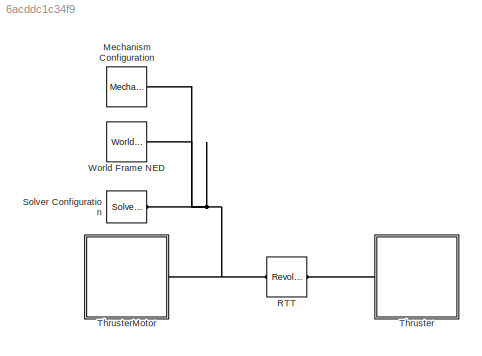
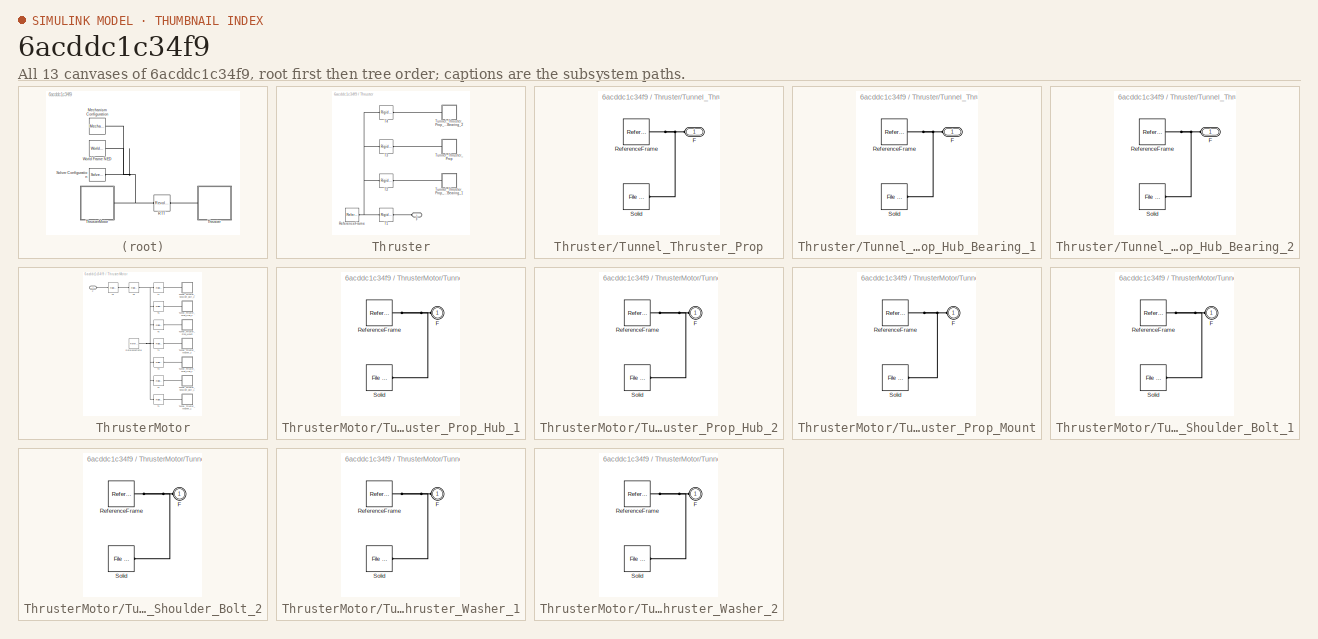
[diagram: thumbnail index - all 13 canvases of the model, root first then tree order]
MODEL slx_6acddc1c34f9
KIND model
CONFIG AbsTol = auto
CONFIG EnableMultiTasking = on
CONFIG FixedStep = auto
CONFIG MaxStep = 0.01
CONFIG MinStep = auto
CONFIG PreLoadFcn = AUV_VehicleParameters;
CONFIG RelTol = 1e-3
CONFIG SampleTimeConstraint = Unconstrained
CONFIG Solver = ode23t
CONFIG SolverName = ode23t
CONFIG StartTime = 0.0
CONFIG StopTime = 10.0
WORKSPACE source: external: MATLAB File  (data not in archive)
BLOCK [Reference] Mechanism Configuration  REF=sm_lib/Utilities/Mechanism
Configuration
  NameLocation = top
  Ports = [0, 0, 0, 0, 0, 0, 1]
  SourceBlock = sm_lib/Utilities/Mechanism\nConfiguration
  SourceProductBaseCode = MS
  SourceType = Mechanism\nConfiguration
BLOCK [Reference] RTT  REF=sm_lib/Joints/Revolute Joint
  Ports = [0, 0, 0, 0, 0, 1, 1]
  SourceBlock = sm_lib/Joints/Revolute Joint
  SourceProductBaseCode = MS
  SourceType = Revolute Joint
BLOCK [Reference] Solver Configuration  REF=nesl_utility/Solver
Configuration
  NameLocation = top
  Ports = [0, 0, 0, 0, 0, 0, 1]
  SourceBlock = nesl_utility/Solver\nConfiguration
  SourceProductBaseCode = MT,SS
  SourceType = Solver\nConfiguration
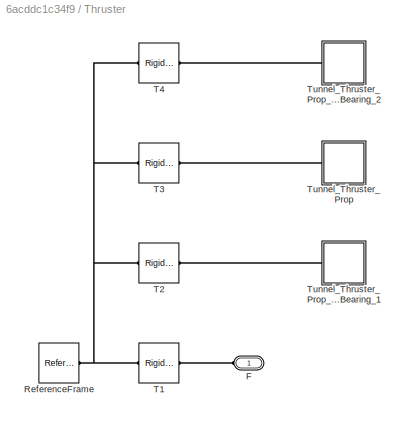
BLOCK [SubSystem] Thruster
  Ports = [0, 0, 0, 0, 0, 1]
  RequestExecContextInheritance = off
BLOCK [PMIOPort] Thruster/F
  Side = Left
BLOCK [Reference] Thruster/ReferenceFrame  REF=sm_lib/Frames and
Transforms/Reference
Frame
  Ports = [0, 0, 0, 0, 0, 0, 1]
  SourceBlock = sm_lib/Frames and\nTransforms/Reference\nFrame
  SourceProductBaseCode = MS
  SourceType = Reference\nFrame
BLOCK [Reference] Thruster/T1  REF=sm_lib/Frames and
Transforms/Rigid
Transform
  Ports = [0, 0, 0, 0, 0, 1, 1]
  SourceBlock = sm_lib/Frames and\nTransforms/Rigid\nTransform
  SourceProductBaseCode = MS
  SourceType = Rigid\nTransform
BLOCK [Reference] Thruster/T2  REF=sm_lib/Frames and
Transforms/Rigid
Transform
  Ports = [0, 0, 0, 0, 0, 1, 1]
  SourceBlock = sm_lib/Frames and\nTransforms/Rigid\nTransform
  SourceProductBaseCode = MS
  SourceType = Rigid\nTransform
BLOCK [Reference] Thruster/T3  REF=sm_lib/Frames and
Transforms/Rigid
Transform
  Ports = [0, 0, 0, 0, 0, 1, 1]
  SourceBlock = sm_lib/Frames and\nTransforms/Rigid\nTransform
  SourceProductBaseCode = MS
  SourceType = Rigid\nTransform
BLOCK [Reference] Thruster/T4  REF=sm_lib/Frames and
Transforms/Rigid
Transform
  Ports = [0, 0, 0, 0, 0, 1, 1]
  SourceBlock = sm_lib/Frames and\nTransforms/Rigid\nTransform
  SourceProductBaseCode = MS
  SourceType = Rigid\nTransform
BLOCK [SubSystem] Thruster/Tunnel_Thruster_Prop
  Ports = [0, 0, 0, 0, 0, 1]
  RequestExecContextInheritance = off
BLOCK [PMIOPort] Thruster/Tunnel_Thruster_Prop/F
  Side = Left
BLOCK [Reference] Thruster/Tunnel_Thruster_Prop/ReferenceFrame  REF=sm_lib/Frames and
Transforms/Reference
Frame
  Ports = [0, 0, 0, 0, 0, 0, 1]
  SourceBlock = sm_lib/Frames and\nTransforms/Reference\nFrame
  SourceProductBaseCode = MS
  SourceType = Reference\nFrame
BLOCK [Reference] Thruster/Tunnel_Thruster_Prop/Solid  REF=sm_lib/Body Elements/File Solid
  Ports = [0, 0, 0, 0, 0, 0, 1]
  SourceBlock = sm_lib/Body Elements/File Solid
  SourceProductBaseCode = MS
  SourceType = File Solid
BLOCK [SubSystem] Thruster/Tunnel_Thruster_Prop_Hub_Bearing_1
  Ports = [0, 0, 0, 0, 0, 1]
  RequestExecContextInheritance = off
BLOCK [PMIOPort] Thruster/Tunnel_Thruster_Prop_Hub_Bearing_1/F
  Side = Left
BLOCK [Reference] Thruster/Tunnel_Thruster_Prop_Hub_Bearing_1/ReferenceFrame  REF=sm_lib/Frames and
Transforms/Reference
Frame
  Ports = [0, 0, 0, 0, 0, 0, 1]
  SourceBlock = sm_lib/Frames and\nTransforms/Reference\nFrame
  SourceProductBaseCode = MS
  SourceType = Reference\nFrame
BLOCK [Reference] Thruster/Tunnel_Thruster_Prop_Hub_Bearing_1/Solid  REF=sm_lib/Body Elements/File Solid
  Ports = [0, 0, 0, 0, 0, 0, 1]
  SourceBlock = sm_lib/Body Elements/File Solid
  SourceProductBaseCode = MS
  SourceType = File Solid
BLOCK [SubSystem] Thruster/Tunnel_Thruster_Prop_Hub_Bearing_2
  Ports = [0, 0, 0, 0, 0, 1]
  RequestExecContextInheritance = off
BLOCK [PMIOPort] Thruster/Tunnel_Thruster_Prop_Hub_Bearing_2/F
  Side = Left
BLOCK [Reference] Thruster/Tunnel_Thruster_Prop_Hub_Bearing_2/ReferenceFrame  REF=sm_lib/Frames and
Transforms/Reference
Frame
  Ports = [0, 0, 0, 0, 0, 0, 1]
  SourceBlock = sm_lib/Frames and\nTransforms/Reference\nFrame
  SourceProductBaseCode = MS
  SourceType = Reference\nFrame
BLOCK [Reference] Thruster/Tunnel_Thruster_Prop_Hub_Bearing_2/Solid  REF=sm_lib/Body Elements/File Solid
  Ports = [0, 0, 0, 0, 0, 0, 1]
  SourceBlock = sm_lib/Body Elements/File Solid
  SourceProductBaseCode = MS
  SourceType = File Solid
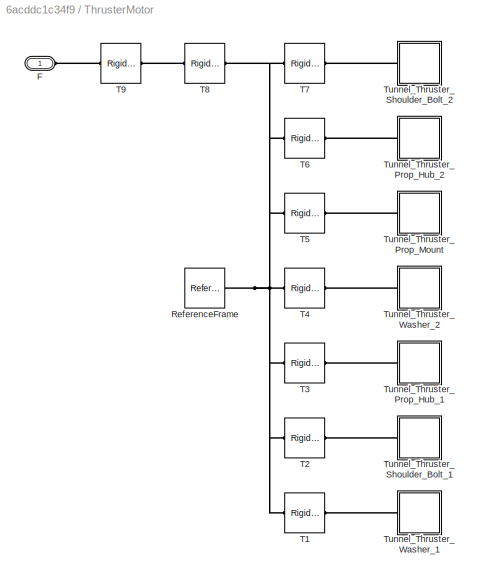
BLOCK [SubSystem] ThrusterMotor
  Ports = [0, 0, 0, 0, 0, 1]
  RequestExecContextInheritance = off
BLOCK [PMIOPort] ThrusterMotor/F
  Side = Left
BLOCK [Reference] ThrusterMotor/ReferenceFrame  REF=sm_lib/Frames and
Transforms/Reference
Frame
  Ports = [0, 0, 0, 0, 0, 0, 1]
  SourceBlock = sm_lib/Frames and\nTransforms/Reference\nFrame
  SourceProductBaseCode = MS
  SourceType = Reference\nFrame
BLOCK [Reference] ThrusterMotor/T1  REF=sm_lib/Frames and
Transforms/Rigid
Transform
  Ports = [0, 0, 0, 0, 0, 1, 1]
  SourceBlock = sm_lib/Frames and\nTransforms/Rigid\nTransform
  SourceProductBaseCode = MS
  SourceType = Rigid\nTransform
BLOCK [Reference] ThrusterMotor/T2  REF=sm_lib/Frames and
Transforms/Rigid
Transform
  Ports = [0, 0, 0, 0, 0, 1, 1]
  SourceBlock = sm_lib/Frames and\nTransforms/Rigid\nTransform
  SourceProductBaseCode = MS
  SourceType = Rigid\nTransform
BLOCK [Reference] ThrusterMotor/T3  REF=sm_lib/Frames and
Transforms/Rigid
Transform
  Ports = [0, 0, 0, 0, 0, 1, 1]
  SourceBlock = sm_lib/Frames and\nTransforms/Rigid\nTransform
  SourceProductBaseCode = MS
  SourceType = Rigid\nTransform
BLOCK [Reference] ThrusterMotor/T4  REF=sm_lib/Frames and
Transforms/Rigid
Transform
  Ports = [0, 0, 0, 0, 0, 1, 1]
  SourceBlock = sm_lib/Frames and\nTransforms/Rigid\nTransform
  SourceProductBaseCode = MS
  SourceType = Rigid\nTransform
BLOCK [Reference] ThrusterMotor/T5  REF=sm_lib/Frames and
Transforms/Rigid
Transform
  Ports = [0, 0, 0, 0, 0, 1, 1]
  SourceBlock = sm_lib/Frames and\nTransforms/Rigid\nTransform
  SourceProductBaseCode = MS
  SourceType = Rigid\nTransform
BLOCK [Reference] ThrusterMotor/T6  REF=sm_lib/Frames and
Transforms/Rigid
Transform
  Ports = [0, 0, 0, 0, 0, 1, 1]
  SourceBlock = sm_lib/Frames and\nTransforms/Rigid\nTransform
  SourceProductBaseCode = MS
  SourceType = Rigid\nTransform
BLOCK [Reference] ThrusterMotor/T7  REF=sm_lib/Frames and
Transforms/Rigid
Transform
  Ports = [0, 0, 0, 0, 0, 1, 1]
  SourceBlock = sm_lib/Frames and\nTransforms/Rigid\nTransform
  SourceProductBaseCode = MS
  SourceType = Rigid\nTransform
BLOCK [Reference] ThrusterMotor/T8  REF=sm_lib/Frames and
Transforms/Rigid
Transform
  Ports = [0, 0, 0, 0, 0, 1, 1]
  SourceBlock = sm_lib/Frames and\nTransforms/Rigid\nTransform
  SourceProductBaseCode = MS
  SourceType = Rigid\nTransform
BLOCK [Reference] ThrusterMotor/T9  REF=sm_lib/Frames and
Transforms/Rigid
Transform
  Ports = [0, 0, 0, 0, 0, 1, 1]
  SourceBlock = sm_lib/Frames and\nTransforms/Rigid\nTransform
  SourceProductBaseCode = MS
  SourceType = Rigid\nTransform
BLOCK [SubSystem] ThrusterMotor/Tunnel_Thruster_Prop_Hub_1
  Ports = [0, 0, 0, 0, 0, 1]
  RequestExecContextInheritance = off
BLOCK [PMIOPort] ThrusterMotor/Tunnel_Thruster_Prop_Hub_1/F
  Side = Left
BLOCK [Reference] ThrusterMotor/Tunnel_Thruster_Prop_Hub_1/ReferenceFrame  REF=sm_lib/Frames and
Transforms/Reference
Frame
  Ports = [0, 0, 0, 0, 0, 0, 1]
  SourceBlock = sm_lib/Frames and\nTransforms/Reference\nFrame
  SourceProductBaseCode = MS
  SourceType = Reference\nFrame
BLOCK [Reference] ThrusterMotor/Tunnel_Thruster_Prop_Hub_1/Solid  REF=sm_lib/Body Elements/File Solid
  Ports = [0, 0, 0, 0, 0, 0, 1]
  SourceBlock = sm_lib/Body Elements/File Solid
  SourceProductBaseCode = MS
  SourceType = File Solid
BLOCK [SubSystem] ThrusterMotor/Tunnel_Thruster_Prop_Hub_2
  Ports = [0, 0, 0, 0, 0, 1]
  RequestExecContextInheritance = off
BLOCK [PMIOPort] ThrusterMotor/Tunnel_Thruster_Prop_Hub_2/F
  Side = Left
BLOCK [Reference] ThrusterMotor/Tunnel_Thruster_Prop_Hub_2/ReferenceFrame  REF=sm_lib/Frames and
Transforms/Reference
Frame
  Ports = [0, 0, 0, 0, 0, 0, 1]
  SourceBlock = sm_lib/Frames and\nTransforms/Reference\nFrame
  SourceProductBaseCode = MS
  SourceType = Reference\nFrame
BLOCK [Reference] ThrusterMotor/Tunnel_Thruster_Prop_Hub_2/Solid  REF=sm_lib/Body Elements/File Solid
  Ports = [0, 0, 0, 0, 0, 0, 1]
  SourceBlock = sm_lib/Body Elements/File Solid
  SourceProductBaseCode = MS
  SourceType = File Solid
BLOCK [SubSystem] ThrusterMotor/Tunnel_Thruster_Prop_Mount
  Ports = [0, 0, 0, 0, 0, 1]
  RequestExecContextInheritance = off
BLOCK [PMIOPort] ThrusterMotor/Tunnel_Thruster_Prop_Mount/F
  Side = Left
BLOCK [Reference] ThrusterMotor/Tunnel_Thruster_Prop_Mount/ReferenceFrame  REF=sm_lib/Frames and
Transforms/Reference
Frame
  Ports = [0, 0, 0, 0, 0, 0, 1]
  SourceBlock = sm_lib/Frames and\nTransforms/Reference\nFrame
  SourceProductBaseCode = MS
  SourceType = Reference\nFrame
BLOCK [Reference] ThrusterMotor/Tunnel_Thruster_Prop_Mount/Solid  REF=sm_lib/Body Elements/File Solid
  Ports = [0, 0, 0, 0, 0, 0, 1]
  SourceBlock = sm_lib/Body Elements/File Solid
  SourceProductBaseCode = MS
  SourceType = File Solid
BLOCK [SubSystem] ThrusterMotor/Tunnel_Thruster_Shoulder_Bolt_1
  Ports = [0, 0, 0, 0, 0, 1]
  RequestExecContextInheritance = off
BLOCK [PMIOPort] ThrusterMotor/Tunnel_Thruster_Shoulder_Bolt_1/F
  Side = Left
BLOCK [Reference] ThrusterMotor/Tunnel_Thruster_Shoulder_Bolt_1/ReferenceFrame  REF=sm_lib/Frames and
Transforms/Reference
Frame
  Ports = [0, 0, 0, 0, 0, 0, 1]
  SourceBlock = sm_lib/Frames and\nTransforms/Reference\nFrame
  SourceProductBaseCode = MS
  SourceType = Reference\nFrame
BLOCK [Reference] ThrusterMotor/Tunnel_Thruster_Shoulder_Bolt_1/Solid  REF=sm_lib/Body Elements/File Solid
  Ports = [0, 0, 0, 0, 0, 0, 1]
  SourceBlock = sm_lib/Body Elements/File Solid
  SourceProductBaseCode = MS
  SourceType = File Solid
BLOCK [SubSystem] ThrusterMotor/Tunnel_Thruster_Shoulder_Bolt_2
  Ports = [0, 0, 0, 0, 0, 1]
  RequestExecContextInheritance = off
BLOCK [PMIOPort] ThrusterMotor/Tunnel_Thruster_Shoulder_Bolt_2/F
  Side = Left
BLOCK [Reference] ThrusterMotor/Tunnel_Thruster_Shoulder_Bolt_2/ReferenceFrame  REF=sm_lib/Frames and
Transforms/Reference
Frame
  Ports = [0, 0, 0, 0, 0, 0, 1]
  SourceBlock = sm_lib/Frames and\nTransforms/Reference\nFrame
  SourceProductBaseCode = MS
  SourceType = Reference\nFrame
BLOCK [Reference] ThrusterMotor/Tunnel_Thruster_Shoulder_Bolt_2/Solid  REF=sm_lib/Body Elements/File Solid
  Ports = [0, 0, 0, 0, 0, 0, 1]
  SourceBlock = sm_lib/Body Elements/File Solid
  SourceProductBaseCode = MS
  SourceType = File Solid
BLOCK [SubSystem] ThrusterMotor/Tunnel_Thruster_Washer_1
  Ports = [0, 0, 0, 0, 0, 1]
  RequestExecContextInheritance = off
BLOCK [PMIOPort] ThrusterMotor/Tunnel_Thruster_Washer_1/F
  Side = Left
BLOCK [Reference] ThrusterMotor/Tunnel_Thruster_Washer_1/ReferenceFrame  REF=sm_lib/Frames and
Transforms/Reference
Frame
  Ports = [0, 0, 0, 0, 0, 0, 1]
  SourceBlock = sm_lib/Frames and\nTransforms/Reference\nFrame
  SourceProductBaseCode = MS
  SourceType = Reference\nFrame
BLOCK [Reference] ThrusterMotor/Tunnel_Thruster_Washer_1/Solid  REF=sm_lib/Body Elements/File Solid
  Ports = [0, 0, 0, 0, 0, 0, 1]
  SourceBlock = sm_lib/Body Elements/File Solid
  SourceProductBaseCode = MS
  SourceType = File Solid
BLOCK [SubSystem] ThrusterMotor/Tunnel_Thruster_Washer_2
  Ports = [0, 0, 0, 0, 0, 1]
  RequestExecContextInheritance = off
BLOCK [PMIOPort] ThrusterMotor/Tunnel_Thruster_Washer_2/F
  Side = Left
BLOCK [Reference] ThrusterMotor/Tunnel_Thruster_Washer_2/ReferenceFrame  REF=sm_lib/Frames and
Transforms/Reference
Frame
  Ports = [0, 0, 0, 0, 0, 0, 1]
  SourceBlock = sm_lib/Frames and\nTransforms/Reference\nFrame
  SourceProductBaseCode = MS
  SourceType = Reference\nFrame
BLOCK [Reference] ThrusterMotor/Tunnel_Thruster_Washer_2/Solid  REF=sm_lib/Body Elements/File Solid
  Ports = [0, 0, 0, 0, 0, 0, 1]
  SourceBlock = sm_lib/Body Elements/File Solid
  SourceProductBaseCode = MS
  SourceType = File Solid
BLOCK [Reference] World Frame NED  REF=sm_lib/Frames and
Transforms/World Frame
  Ports = [0, 0, 0, 0, 0, 0, 1]
  SourceBlock = sm_lib/Frames and\nTransforms/World Frame
  SourceProductBaseCode = MS
  SourceType = World Frame
PNET net1: Mechanism Configuration:RConn1 -- RTT:LConn1 -- Solver Configuration:RConn1 -- ThrusterMotor:LConn1 -- World Frame NED:RConn1
PLINE RTT:RConn1 -- Thruster:LConn1
PLINE Thruster/F:RConn1 -- Thruster/T1:RConn1
PNET net2: Thruster/ReferenceFrame:RConn1 -- Thruster/T1:LConn1 -- Thruster/T2:LConn1 -- Thruster/T3:LConn1 -- Thruster/T4:LConn1
PLINE Thruster/T2:RConn1 -- Thruster/Tunnel_Thruster_Prop_Hub_Bearing_1:LConn1
PLINE Thruster/T3:RConn1 -- Thruster/Tunnel_Thruster_Prop:LConn1
PLINE Thruster/T4:RConn1 -- Thruster/Tunnel_Thruster_Prop_Hub_Bearing_2:LConn1
PNET net3: Thruster/Tunnel_Thruster_Prop/F:RConn1 -- Thruster/Tunnel_Thruster_Prop/ReferenceFrame:RConn1 -- Thruster/Tunnel_Thruster_Prop/Solid:RConn1
PNET net4: Thruster/Tunnel_Thruster_Prop_Hub_Bearing_1/F:RConn1 -- Thruster/Tunnel_Thruster_Prop_Hub_Bearing_1/ReferenceFrame:RConn1 -- Thruster/Tunnel_Thruster_Prop_Hub_Bearing_1/Solid:RConn1
PNET net5: Thruster/Tunnel_Thruster_Prop_Hub_Bearing_2/F:RConn1 -- Thruster/Tunnel_Thruster_Prop_Hub_Bearing_2/ReferenceFrame:RConn1 -- Thruster/Tunnel_Thruster_Prop_Hub_Bearing_2/Solid:RConn1
PLINE ThrusterMotor/F:RConn1 -- ThrusterMotor/T9:RConn1
PNET net6: ThrusterMotor/ReferenceFrame:RConn1 -- ThrusterMotor/T1:LConn1 -- ThrusterMotor/T2:LConn1 -- ThrusterMotor/T3:LConn1 -- ThrusterMotor/T4:LConn1 -- ThrusterMotor/T5:LConn1 -- ThrusterMotor/T6:LConn1 -- ThrusterMotor/T7:LConn1 -- ThrusterMotor/T8:RConn1
PLINE ThrusterMotor/T1:RConn1 -- ThrusterMotor/Tunnel_Thruster_Washer_1:LConn1
PLINE ThrusterMotor/T2:RConn1 -- ThrusterMotor/Tunnel_Thruster_Shoulder_Bolt_1:LConn1
PLINE ThrusterMotor/T3:RConn1 -- ThrusterMotor/Tunnel_Thruster_Prop_Hub_1:LConn1
PLINE ThrusterMotor/T4:RConn1 -- ThrusterMotor/Tunnel_Thruster_Washer_2:LConn1
PLINE ThrusterMotor/T5:RConn1 -- ThrusterMotor/Tunnel_Thruster_Prop_Mount:LConn1
PLINE ThrusterMotor/T6:RConn1 -- ThrusterMotor/Tunnel_Thruster_Prop_Hub_2:LConn1
PLINE ThrusterMotor/T7:RConn1 -- ThrusterMotor/Tunnel_Thruster_Shoulder_Bolt_2:LConn1
PLINE ThrusterMotor/T8:LConn1 -- ThrusterMotor/T9:LConn1
PNET net7: ThrusterMotor/Tunnel_Thruster_Prop_Hub_1/F:RConn1 -- ThrusterMotor/Tunnel_Thruster_Prop_Hub_1/ReferenceFrame:RConn1 -- ThrusterMotor/Tunnel_Thruster_Prop_Hub_1/Solid:RConn1
PNET net8: ThrusterMotor/Tunnel_Thruster_Prop_Hub_2/F:RConn1 -- ThrusterMotor/Tunnel_Thruster_Prop_Hub_2/ReferenceFrame:RConn1 -- ThrusterMotor/Tunnel_Thruster_Prop_Hub_2/Solid:RConn1
PNET net9: ThrusterMotor/Tunnel_Thruster_Prop_Mount/F:RConn1 -- ThrusterMotor/Tunnel_Thruster_Prop_Mount/ReferenceFrame:RConn1 -- ThrusterMotor/Tunnel_Thruster_Prop_Mount/Solid:RConn1
PNET net10: ThrusterMotor/Tunnel_Thruster_Shoulder_Bolt_1/F:RConn1 -- ThrusterMotor/Tunnel_Thruster_Shoulder_Bolt_1/ReferenceFrame:RConn1 -- ThrusterMotor/Tunnel_Thruster_Shoulder_Bolt_1/Solid:RConn1
PNET net11: ThrusterMotor/Tunnel_Thruster_Shoulder_Bolt_2/F:RConn1 -- ThrusterMotor/Tunnel_Thruster_Shoulder_Bolt_2/ReferenceFrame:RConn1 -- ThrusterMotor/Tunnel_Thruster_Shoulder_Bolt_2/Solid:RConn1
PNET net12: ThrusterMotor/Tunnel_Thruster_Washer_1/F:RConn1 -- ThrusterMotor/Tunnel_Thruster_Washer_1/ReferenceFrame:RConn1 -- ThrusterMotor/Tunnel_Thruster_Washer_1/Solid:RConn1
PNET net13: ThrusterMotor/Tunnel_Thruster_Washer_2/F:RConn1 -- ThrusterMotor/Tunnel_Thruster_Washer_2/ReferenceFrame:RConn1 -- ThrusterMotor/Tunnel_Thruster_Washer_2/Solid:RConn1
note: PNET lines group multi-terminal physical nets as a canonical sorted terminal list (undirected conserving connections); 2-terminal nets keep the pairwise PLINE form
